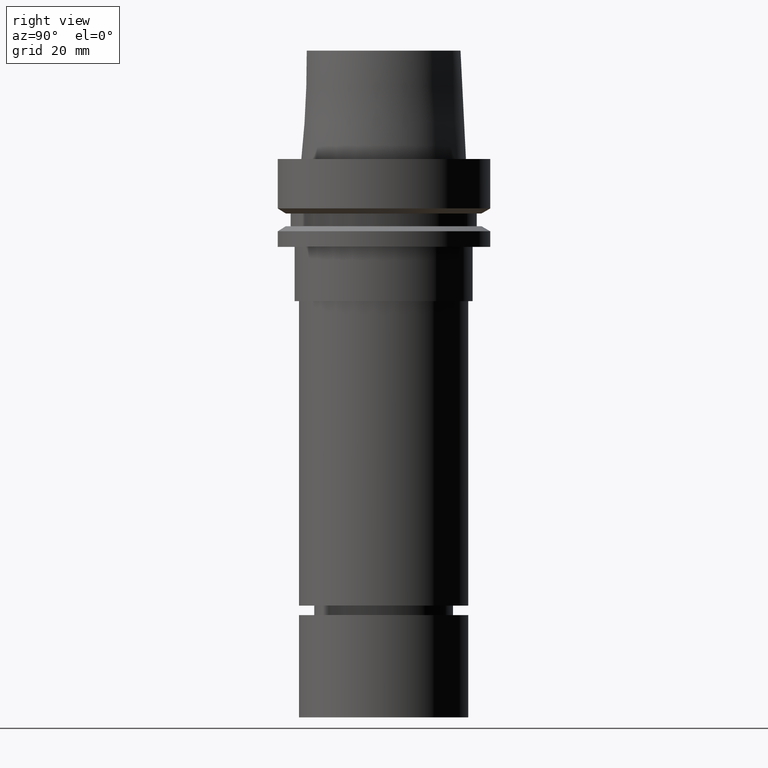
[diagram: clean part render]
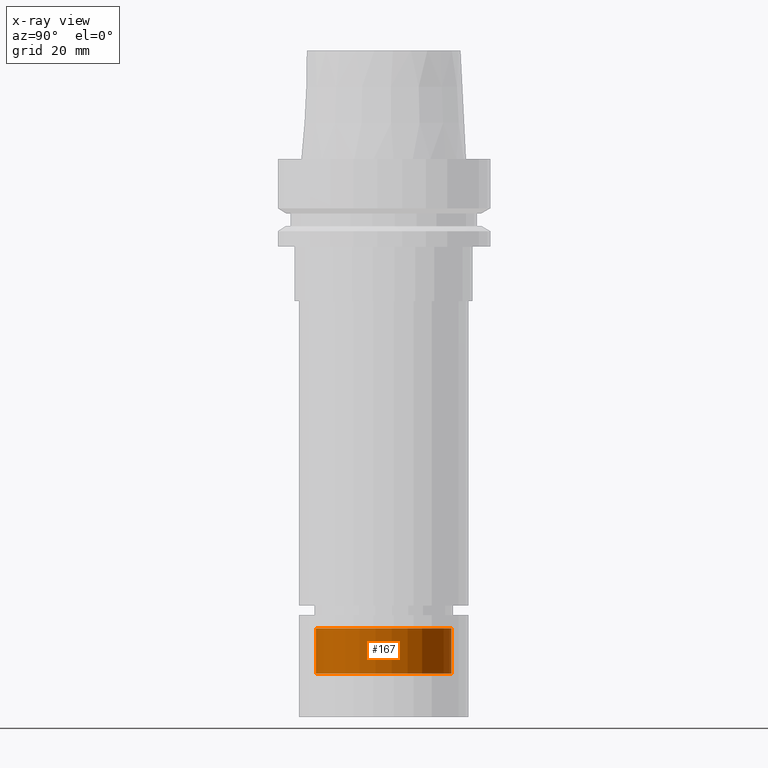
[diagram: x-ray — body ghosted, one internal face saturated and labeled with its STEP entity id]
A machine part, right view, then the same camera in x-ray: the body is ghosted and one INTERNAL B-rep face — a face not visible from any outside direction — is saturated and labeled: STEP entity #167.
In plain terms, the highlighted cylindrical surface (bore or boss wall) has radius 20 mm, axis along (-0, -0, 1).
Its self-contained STEP definition (entity closure, byte-faithful):
#84=EDGE_CURVE('Unnamed[1]',#223,#223,#224,.T.);
#100=EDGE_CURVE('Unnamed[1]',#249,#249,#250,.T.);
#167=ADVANCED_FACE('Unnamed[1]',(#350,#351),#352,.T.);
#223=VERTEX_POINT('',#417);
#224=CIRCLE('',#418,20.0);
#249=VERTEX_POINT('',#449);
#250=CIRCLE('',#450,20.0000000000001);
#350=FACE_BOUND('',#575,.T.);
#351=FACE_BOUND('',#576,.T.);
#352=CYLINDRICAL_SURFACE('',#577,20.0);
#417=CARTESIAN_POINT('',(8.49482973562113E-015,20.0,-138.73109767707));
#418=AXIS2_PLACEMENT_3D('',#639,#640,#641);
#449=CARTESIAN_POINT('',(9.31311707717483E-015,20.0000000000001,-152.094744111673));
#450=AXIS2_PLACEMENT_3D('',#669,#670,#671);
#575=EDGE_LOOP('',(#781));
#576=EDGE_LOOP('',(#782));
#577=AXIS2_PLACEMENT_3D('',#783,#784,#785);
#639=CARTESIAN_POINT('',(8.49482973562113E-015,1.69896594712423E-014,-138.73109767707));
#640=DIRECTION('',(-6.12323399573677E-017,-1.22464679914735E-016,1.0));
#641=DIRECTION('',(-1.23259516440783E-032,1.0,1.22464679914735E-016));
#669=CARTESIAN_POINT('',(9.31311707717483E-015,1.86262341543497E-014,-152.094744111673));
#670=DIRECTION('',(-6.12323399573677E-017,-1.22464679914735E-016,1.0));
#671=DIRECTION('',(-1.23259516440783E-032,1.0,1.22464679914735E-016));
#781=ORIENTED_EDGE('',*,*,#84,.F.);
#782=ORIENTED_EDGE('',*,*,#100,.T.);
#783=CARTESIAN_POINT('',(8.90397340639798E-015,1.7807946812796E-014,-145.412920894372));
#784=DIRECTION('',(-6.12323399573677E-017,-1.22464679914735E-016,1.0));
#785=DIRECTION('',(-1.23259516440783E-032,1.0,1.22464679914735E-016));